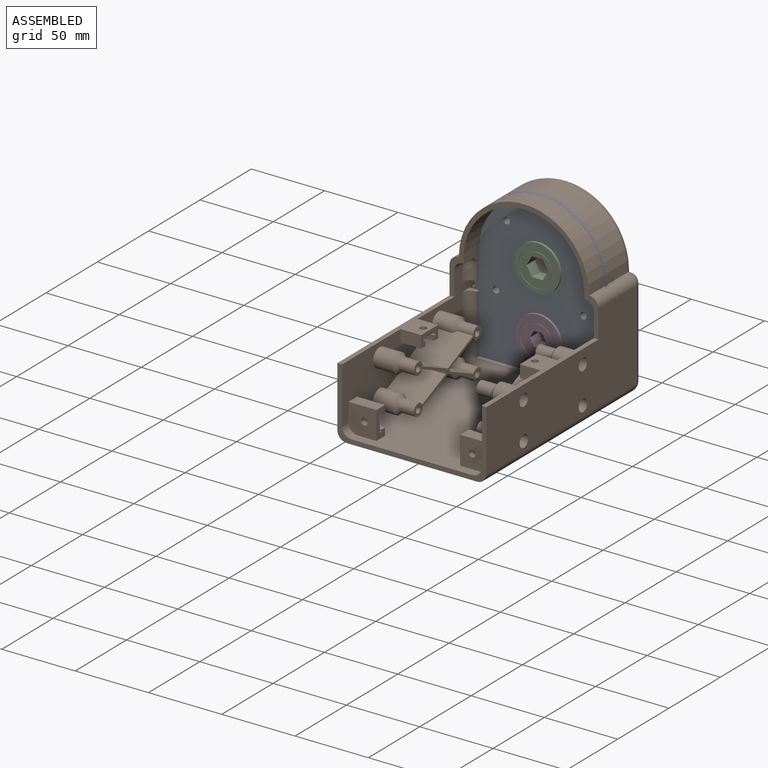
[diagram: assembled view]
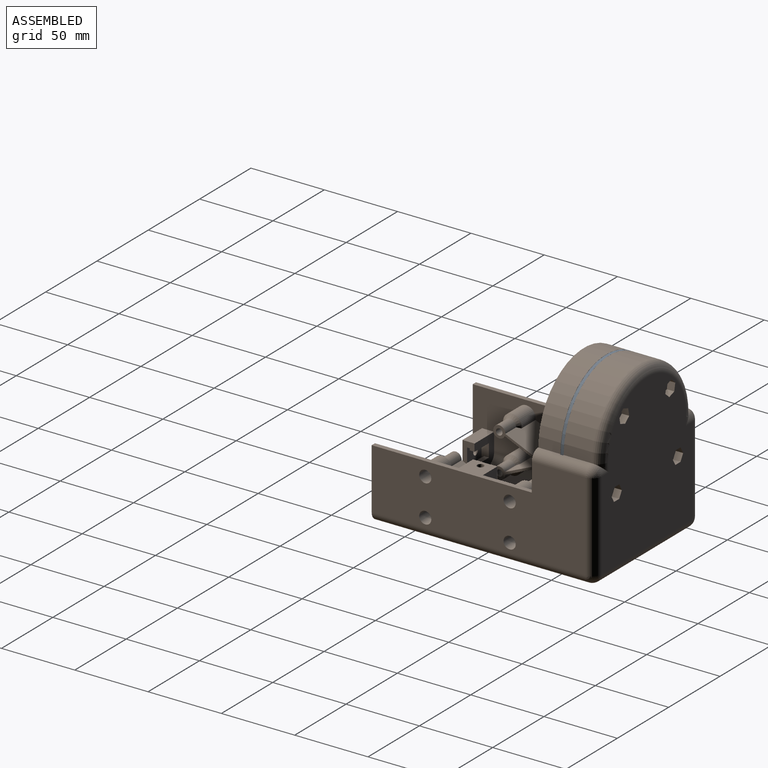
[diagram: assembled view, second angle]
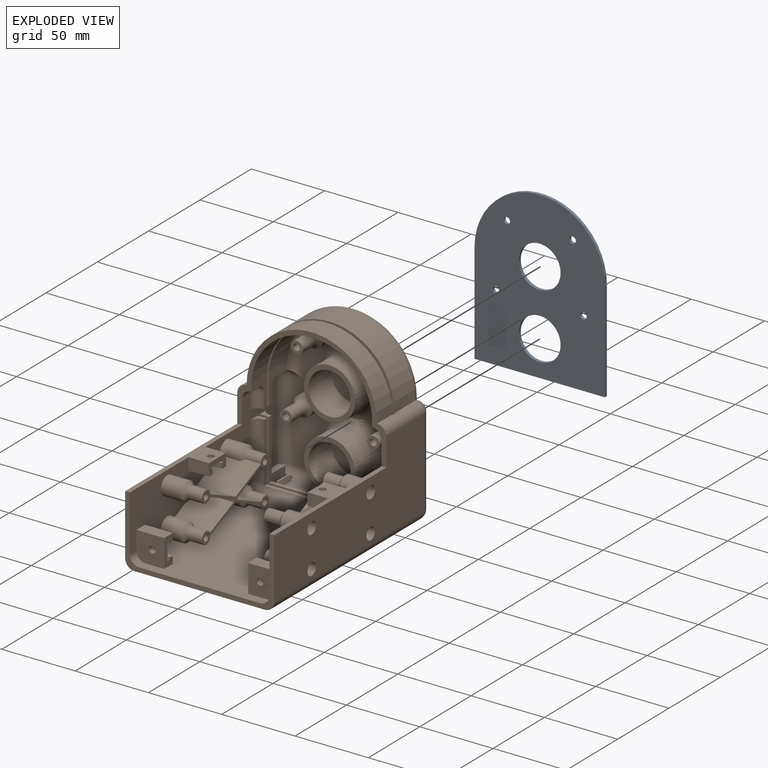
[diagram: exploded view]
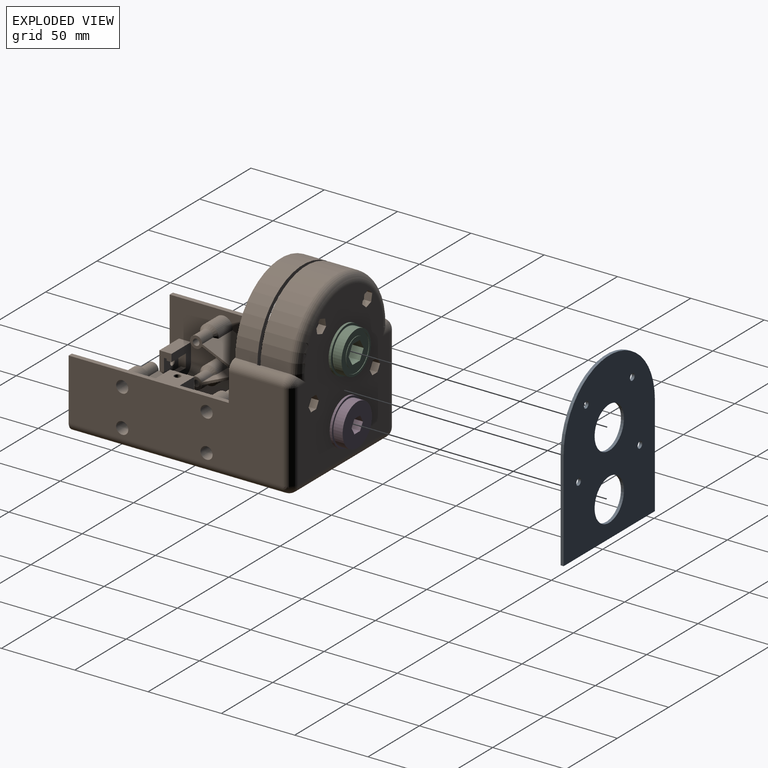
[diagram: exploded view, second angle]
ASSEMBLY  parts=4 mates=3
PART A: 12 faces, bbox 88.9x2x113 mm
  f0: plane 113.03x88.9mm, normal (0,-1,0), area 7855.7mm2, adj f2,f3,f4,f5,f6,f7,f8,f9
  f1: plane 113.03x88.9mm, normal (0,1,0), area 7855.7mm2, adj f2,f3,f4,f5,f6,f7,f8,f9
  f2: plane 68.58x2.03mm, normal (-1,0,0), area 139.4mm2, adj f0,f1,f10,f11
  f3: plane 68.58x2.03mm, normal (1,0,0), area 139.4mm2, adj f0,f1,f10,f11
  f4: cylinder r=14.29mm len=28.58mm, axis (0,1,0), area 182.4mm2, adj f0,f1
  f5: cylinder r=14.29mm len=28.58mm, axis (0,1,0), area 182.4mm2, adj f0,f1
  f6: cylinder r=2.22mm len=4.45mm, axis (0,1,0), area 28.4mm2, adj f0,f1
  f7: cylinder r=2.22mm len=4.45mm, axis (0,1,0), area 28.4mm2, adj f0,f1
  f8: cylinder r=2.22mm len=4.45mm, axis (0,1,0), area 28.4mm2, adj f0,f1
  f9: cylinder r=2.22mm len=4.45mm, axis (0,1,0), area 28.4mm2, adj f0,f1
  f10: cylinder r=44.45mm len=88.9mm, axis (0,1,0), area 283.8mm2, adj f0,f1,f2,f3
  f11: plane 88.9x2.03mm, normal (0,0,-1), area 180.6mm2, adj f0,f1,f2,f3
PART B: 320 faces, bbox 102.6x153.4x122.1 mm
  f0: plane 104.78x88.9mm, normal (0,1,0), area 7850.9mm2, adj f193,f196,f199,f201,f202,f204,f293,f294
  f1: cylinder r=2.22mm len=20.83mm, axis (0,1,0), area 290.9mm2, adj f278,f319
  f2: cylinder r=2.22mm len=20.83mm, axis (0,1,0), area 290.9mm2, adj f280,f312
  f3: cylinder r=2.22mm len=20.83mm, axis (0,1,0), area 290.9mm2, adj f286,f299
  f4: cylinder r=2.22mm len=20.83mm, axis (0,1,0), area 290.9mm2, adj f288,f292
  f5: plane 98.43x82.55mm, normal (0,-1,0), area 3098.8mm2, adj f6,f60,f205,f207,f209,f210,f212,f236
  f6: torus R=34.92mm, axis (0,-1,0), area 1266mm2, adj f5,f40,f207,f209,f276,f284
  f7: cylinder r=5.08mm len=73.05mm, axis (-1,0,0), area 489.1mm2, adj f59,f270,f274,f275
  f8: plane 3.84x1.91mm, normal (0,-1,0), area 4.4mm2, adj f55,f59,f223,f224
  f9: plane 12.57x1.02mm, normal (0,0,1), area 12.8mm2, adj f10,f11,f56,f273
  f10: plane 12.57x3.84mm, normal (-0.99,0,-0.16), area 48.9mm2, adj f9,f56,f58,f273
  f11: plane 12.57x3.84mm, normal (0.97,0,0.23), area 49.5mm2, adj f9,f56,f59,f273
  f12: plane 90.17x2.16mm, normal (0,0,1), area 194.7mm2, adj f28,f34,f246,f249
  f13: plane 44.45x7.62mm, normal (1,0,0), area 103.9mm2, adj f14,f246,f260,f261,f268,f271,f272
  f14: plane 116.87x82.55mm, normal (0,0,1), area 9438.3mm2, adj f13,f36,f54,f63,f143,f144,f146,f147
  f15: plane 40.64x2.54mm, normal (1,0,0), area 103.2mm2, adj f34,f218,f266,f270
  f16: plane 92.71x63.5mm, normal (0,-1,0), area 606.2mm2, adj f19,f24,f29,f38,f39,f40,f41,f62
  f17: plane 10.8x1.27mm, normal (0,1,0), area 13.4mm2, adj f19,f23,f265,f267
  f18: plane 92.71x63.5mm, normal (0,1,0), area 606.2mm2, adj f21,f24,f31,f44,f45,f46,f47,f62
  f19: plane 15.88x7.62mm, normal (1,0,0), area 45.9mm2, adj f16,f17,f39,f265,f267
  f20: plane 10.8x1.27mm, normal (0,-1,0), area 13.4mm2, adj f21,f22,f263,f269
  f21: plane 15.88x7.62mm, normal (1,0,0), area 45.9mm2, adj f18,f20,f45,f263,f269
  f22: cylinder r=5.08mm len=9.53mm, axis (0,0,-1), area 76mm2, adj f20,f62,f263,f269
  f23: cylinder r=5.08mm len=9.53mm, axis (0,0,-1), area 76mm2, adj f17,f62,f265,f267
  f24: cylinder r=6.35mm len=5.08mm, axis (0,-1,0), area 12.7mm2, adj f16,f18,f62,f247
  f25: cylinder r=6.35mm len=5.08mm, axis (0,1,0), area 12.7mm2, adj f34,f62,f246,f249
  f26: cylinder r=6.35mm len=7.49mm, axis (0,-1,0), area 74.7mm2, adj f45,f62,f245,f263
  f27: plane 47.63x6.02mm, normal (0,1,0), area 87.6mm2, adj f33,f57,f59,f70,f250,f258,f270,f274
  f28: plane 44.45x2.16mm, normal (-1,0,0), area 96mm2, adj f12,f34,f246,f258
  f29: plane 15.88x7.62mm, normal (-1,0,0), area 45.9mm2, adj f16,f41,f221,f257,f259
  f30: plane 39.37x1.27mm, normal (0,-1,0), area 49.7mm2, adj f32,f252,f253,f258
  f31: plane 15.88x7.62mm, normal (-1,0,0), area 45.9mm2, adj f18,f47,f251,f255,f259
  f32: cylinder r=5.08mm len=38.1mm, axis (0,0,-1), area 304mm2, adj f30,f68,f253,f258
  f33: cylinder r=5.08mm len=47.63mm, axis (0,0,1), area 314.5mm2, adj f27,f52,f68,f70,f219,f227,f231,f258
  f34: plane 92.71x44.45mm, normal (0,-1,0), area 759mm2, adj f12,f15,f25,f28,f62,f249,f250,f258
  f35: cylinder r=6.35mm len=7.49mm, axis (0,1,0), area 74.7mm2, adj f47,f68,f245,f255
  f36: cylinder r=6.35mm len=102.11mm, axis (0,-1,0), area 967.3mm2, adj f14,f61,f68,f128,f130,f190,f253
  f37: cylinder r=6.35mm len=8.76mm, axis (0,1,0), area 87.4mm2, adj f41,f68,f206,f257
  f38: cylinder r=44.45mm len=88.9mm, axis (0,1,0), area 2731.2mm2, adj f16,f194,f200,f202
  f39: plane 16.38x0.12mm, normal (0,0,-1), area 2mm2, adj f16,f19,f40,f48,f209
  f40: cylinder r=41.27mm len=82.55mm, axis (0,1,0), area 2228.5mm2, adj f6,f16,f39,f41
  f41: plane 16.38x0.12mm, normal (0,0,-1), area 2mm2, adj f16,f29,f37,f40,f207
  f42: plane 146.05x60.33mm, normal (-1,0,0), area 6515.7mm2, adj f71,f109,f111,f113,f115,f143,f195,f200
  f43: plane 146.05x60.33mm, normal (1,0,0), area 6515.7mm2, adj f72,f132,f134,f136,f138,f143,f191,f193
  f44: cylinder r=44.45mm len=88.9mm, axis (0,1,0), area 2110.4mm2, adj f18,f194,f200,f245
  f45: plane 15.11x0.12mm, normal (0,0,-1), area 1.8mm2, adj f18,f21,f26,f46,f245
  f46: cylinder r=41.27mm len=82.55mm, axis (0,1,0), area 2055.8mm2, adj f18,f45,f47,f245
  f47: plane 15.11x0.12mm, normal (0,0,-1), area 1.8mm2, adj f18,f31,f35,f46,f245
  f48: cylinder r=6.35mm len=8.76mm, axis (0,-1,0), area 87.4mm2, adj f39,f62,f211,f265
  f49: cylinder r=17.46mm len=34.93mm, axis (0,1,0), area 1797.5mm2, adj f212,f242
  f50: cylinder r=17.46mm len=34.93mm, axis (0,1,0), area 1813.1mm2, adj f235,f236,f237,f238,f239
  f51: plane 16.14x9.53mm, normal (1,0,0), area 66.9mm2, adj f225,f226,f229,f230,f234,f264
  f52: plane 16.14x9.53mm, normal (-1,0,0), area 66.9mm2, adj f33,f227,f228,f231,f232,f233
  f53: sphere r=6.35mm, area 36.5mm2, adj f60,f205,f219,f220,f228
  f54: cylinder r=6.35mm len=102.11mm, axis (0,1,0), area 967.3mm2, adj f14,f62,f67,f106,f107,f189,f261
  f55: plane 12.57x1.02mm, normal (0,0,1), area 12.8mm2, adj f8,f222,f223,f224
  f56: plane 3.84x1.91mm, normal (0,1,0), area 4.4mm2, adj f9,f10,f11,f60
  f57: plane 17.02x4.03mm, normal (1,0,0), area 54.9mm2, adj f27,f59,f60,f70,f220,f223
  f58: plane 17.02x4.03mm, normal (-1,0,0), area 54.9mm2, adj f10,f59,f60,f70,f217,f218
  f59: plane 76.86x13.84mm, normal (0,0,1), area 672.7mm2, adj f7,f8,f11,f27,f57,f58,f60,f218
  f60: cylinder r=6.35mm len=82.55mm, axis (1,0,0), area 804.5mm2, adj f5,f53,f56,f57,f58,f59,f208,f217
  f61: plane 46.53x14.14mm, normal (-1,0,0), area 413.9mm2, adj f36,f77,f82,f128,f130
  f62: plane 142.88x53.98mm, normal (1,0,0), area 3973.1mm2, adj f16,f18,f22,f23,f24,f25,f26,f34
  f63: plane 19.05x8.26mm, normal (-1,0,0), area 107.6mm2, adj f14,f69,f147,f148,f151,f152,f157,f158
  f64: plane 11.43x5.08mm, normal (-1,0,0), area 49.7mm2, adj f69,f151,f152,f157,f158,f159,f160,f190
  f65: plane 19.05x8.26mm, normal (0,0,1), area 157.3mm2, adj f62,f144,f146,f189
  f66: plane 11.43x5.08mm, normal (1,0,0), area 49.7mm2, adj f145,f149,f150,f153,f154,f155,f156,f189
  f67: plane 46.53x14.14mm, normal (1,0,0), area 413.9mm2, adj f54,f89,f92,f106,f107
  f68: plane 142.88x53.98mm, normal (-1,0,0), area 3870.3mm2, adj f32,f33,f35,f36,f37,f72,f78,f79
  f69: plane 13.97x11.43mm, normal (0,1,0), area 144.2mm2, adj f63,f64,f151,f152,f161
  f70: plane 146.05x88.9mm, normal (0,0,-1), area 12779.4mm2, adj f27,f33,f57,f58,f143,f191,f195,f196
  f71: plane 109.22x17.15mm, normal (0,0,1), area 561.9mm2, adj f42,f62,f143,f163,f164,f166,f187,f245
  f72: plane 109.22x17.15mm, normal (0,0,1), area 561.9mm2, adj f43,f68,f143,f167,f169,f170,f188,f245
  f73: cylinder r=2.22mm len=16.89mm, axis (1,0,0), area 235.9mm2, adj f126,f137
  f74: cylinder r=2.22mm len=16.89mm, axis (1,0,0), area 235.9mm2, adj f126,f135
  f75: cylinder r=2.22mm len=16.99mm, axis (1,0,0), area 237.3mm2, adj f133,f215
  f76: cylinder r=2.22mm len=16.89mm, axis (1,0,0), area 235.9mm2, adj f126,f131
  f77: plane 26.58x24.8mm, normal (0,0.4,-0.91), area 676.9mm2, adj f61,f82,f123,f126,f130,f142
  f78: plane 26.42x23.02mm, normal (0,-0.4,0.91), area 632mm2, adj f68,f123,f124,f126,f130,f142
  f79: plane 26.42x23.02mm, normal (0,-0.4,-0.91), area 632mm2, adj f68,f124,f125,f126,f129,f141
  f80: plane 26.58x24.8mm, normal (0,0.4,0.91), area 676.9mm2, adj f68,f84,f125,f126,f129,f141
  f81: plane 26.42x23.02mm, normal (0,0.4,0.91), area 632mm2, adj f68,f121,f122,f126,f128,f139
  f82: plane 26.58x24.8mm, normal (0,-0.4,-0.91), area 676.9mm2, adj f61,f77,f122,f126,f128,f139
  f83: plane 26.42x23.02mm, normal (0,0.4,-0.91), area 632mm2, adj f68,f120,f121,f126,f127,f140
  f84: plane 26.58x24.8mm, normal (0,-0.4,0.91), area 676.9mm2, adj f68,f80,f120,f126,f127,f140
  f85: cylinder r=2.22mm len=16.89mm, axis (1,0,0), area 235.9mm2, adj f103,f114
  f86: cylinder r=2.22mm len=16.89mm, axis (1,0,0), area 235.9mm2, adj f103,f112
  f87: cylinder r=2.22mm len=16.89mm, axis (1,0,0), area 235.9mm2, adj f103,f110
  f88: cylinder r=2.22mm len=16.89mm, axis (1,0,0), area 235.9mm2, adj f103,f108
  f89: plane 26.58x24.8mm, normal (0,-0.4,-0.91), area 676.9mm2, adj f67,f92,f102,f103,f107,f116
  f90: plane 26.42x23.02mm, normal (0,0.4,0.91), area 632mm2, adj f62,f97,f102,f103,f107,f116
  f91: plane 26.42x23.02mm, normal (0,-0.4,0.91), area 632mm2, adj f62,f100,f101,f103,f106,f117
  f92: plane 26.58x24.8mm, normal (0,0.4,-0.91), area 676.9mm2, adj f67,f89,f101,f103,f106,f117
  f93: plane 26.42x23.02mm, normal (0,0.4,-0.91), area 632mm2, adj f62,f97,f98,f103,f105,f119
  f94: plane 26.58x24.8mm, normal (0,-0.4,0.91), area 676.9mm2, adj f62,f95,f98,f103,f105,f119
  f95: plane 26.58x24.8mm, normal (0,0.4,0.91), area 676.9mm2, adj f62,f94,f99,f103,f104,f118
  f96: plane 26.42x23.02mm, normal (0,-0.4,-0.91), area 632mm2, adj f62,f99,f100,f103,f104,f118
  f97: plane 26.42x1.74mm, normal (0,1,0), area 45.8mm2, adj f62,f90,f93,f103
  f98: cylinder r=4.13mm len=10.54mm, axis (-1,0,0), area 256.2mm2, adj f93,f94,f103,f119
  f99: cylinder r=4.13mm len=10.54mm, axis (-1,0,0), area 256.2mm2, adj f95,f96,f103,f118
  f100: plane 26.42x1.74mm, normal (0,-1,0), area 45.8mm2, adj f62,f91,f96,f103
  f101: cylinder r=4.13mm len=10.54mm, axis (-1,0,0), area 256.2mm2, adj f91,f92,f103,f117
  f102: cylinder r=4.13mm len=10.54mm, axis (-1,0,0), area 256.2mm2, adj f89,f90,f103,f116
  f103: plane 65.79x33.66mm, normal (1,0,0), area 327.3mm2, adj f85,f86,f87,f88,f89,f90,f91,f92
  f104: cylinder r=6.35mm len=13.65mm, axis (-1,0,0), area 522.8mm2, adj f62,f95,f96,f118
  f105: cylinder r=6.35mm len=13.65mm, axis (-1,0,0), area 522.8mm2, adj f62,f93,f94,f119
  f106: cylinder r=6.35mm len=13.65mm, axis (-1,0,0), area 522.8mm2, adj f54,f62,f67,f91,f92,f117
  f107: cylinder r=6.35mm len=13.65mm, axis (-1,0,0), area 522.8mm2, adj f54,f62,f67,f89,f90,f116
  f108: plane 8.26x8.26mm, normal (-1,0,0), area 38mm2, adj f88,f109
  f109: cylinder r=4.13mm len=12.7mm, axis (-1,0,0), area 329.4mm2, adj f42,f108
  f110: plane 8.26x8.26mm, normal (-1,0,0), area 38mm2, adj f87,f111
  f111: cylinder r=4.13mm len=12.7mm, axis (-1,0,0), area 329.4mm2, adj f42,f110
  f112: plane 8.26x8.26mm, normal (-1,0,0), area 38mm2, adj f86,f113
  f113: cylinder r=4.13mm len=12.7mm, axis (-1,0,0), area 329.4mm2, adj f42,f112
  f114: plane 8.26x8.26mm, normal (-1,0,0), area 38mm2, adj f85,f115
  f115: cylinder r=4.13mm len=12.7mm, axis (-1,0,0), area 329.4mm2, adj f42,f114
  f116: cone r=4.13mm half-angle=45deg, axis (-1,0,0), area 98.2mm2, adj f89,f90,f102,f107
  f117: cone r=4.13mm half-angle=45deg, axis (-1,0,0), area 98.2mm2, adj f91,f92,f101,f106
  f118: cone r=4.13mm half-angle=45deg, axis (-1,0,0), area 98.2mm2, adj f95,f96,f99,f104
  f119: cone r=4.13mm half-angle=45deg, axis (-1,0,0), area 98.2mm2, adj f93,f94,f98,f105
  f120: cylinder r=4.13mm len=10.64mm, axis (1,0,0), area 258.8mm2, adj f83,f84,f126,f140,f215
  f121: plane 26.42x1.74mm, normal (0,1,0), area 45.8mm2, adj f68,f81,f83,f126
  f122: cylinder r=4.13mm len=10.54mm, axis (1,0,0), area 256.2mm2, adj f81,f82,f126,f139
  f123: cylinder r=4.13mm len=10.54mm, axis (1,0,0), area 256.2mm2, adj f77,f78,f126,f142
  f124: plane 26.42x1.74mm, normal (0,-1,0), area 45.8mm2, adj f68,f78,f79,f126
  f125: cylinder r=4.13mm len=10.54mm, axis (1,0,0), area 256.2mm2, adj f79,f80,f126,f141
  f126: plane 65.79x33.66mm, normal (-1,0,0), area 289.3mm2, adj f73,f74,f76,f77,f78,f79,f80,f81
  f127: cylinder r=6.35mm len=13.65mm, axis (1,0,0), area 522.8mm2, adj f68,f83,f84,f140
  f128: cylinder r=6.35mm len=13.65mm, axis (1,0,0), area 522.8mm2, adj f36,f61,f68,f81,f82,f139
  f129: cylinder r=6.35mm len=13.65mm, axis (1,0,0), area 522.8mm2, adj f68,f79,f80,f141
  f130: cylinder r=6.35mm len=13.65mm, axis (1,0,0), area 522.8mm2, adj f36,f61,f68,f77,f78,f142
  f131: plane 8.26x8.26mm, normal (1,0,0), area 38mm2, adj f76,f132
  f132: cylinder r=4.13mm len=12.7mm, axis (1,0,0), area 329.4mm2, adj f43,f131
  f133: plane 8.26x8.26mm, normal (1,0,0), area 38mm2, adj f75,f134
  f134: cylinder r=4.13mm len=12.7mm, axis (1,0,0), area 329.4mm2, adj f43,f133
  f135: plane 8.26x8.26mm, normal (1,0,0), area 38mm2, adj f74,f136
  f136: cylinder r=4.13mm len=12.7mm, axis (1,0,0), area 329.4mm2, adj f43,f135
  f137: plane 8.26x8.26mm, normal (1,0,0), area 38mm2, adj f73,f138
  f138: cylinder r=4.13mm len=12.7mm, axis (1,0,0), area 329.4mm2, adj f43,f137
  f139: cone r=4.13mm half-angle=45deg, axis (1,0,0), area 98.2mm2, adj f81,f82,f122,f128
  f140: cone r=4.13mm half-angle=45deg, axis (1,0,0), area 98.2mm2, adj f83,f84,f120,f127
  f141: cone r=4.13mm half-angle=45deg, axis (1,0,0), area 98.2mm2, adj f79,f80,f125,f129
  f142: cone r=4.13mm half-angle=45deg, axis (1,0,0), area 98.2mm2, adj f77,f78,f123,f130
  f143: plane 101.6x47.63mm, normal (0,-1,0), area 604.8mm2, adj f14,f42,f43,f62,f68,f70,f71,f72
  f144: plane 19.05x19.05mm, normal (0,-1,0), area 338.7mm2, adj f14,f62,f65,f146,f162,f213
  f145: plane 13.97x11.43mm, normal (0,1,0), area 144.2mm2, adj f66,f146,f149,f150,f162
  f146: plane 19.05x8.26mm, normal (1,0,0), area 107.6mm2, adj f14,f65,f144,f145,f149,f150,f153,f154
  f147: plane 19.05x19.05mm, normal (0,-1,0), area 338.7mm2, adj f14,f63,f68,f148,f161,f214
  f148: plane 19.05x8.26mm, normal (0,0,1), area 157.3mm2, adj f63,f68,f147,f190
  f149: plane 13.97x1.78mm, normal (0,0,-1), area 24.8mm2, adj f66,f145,f146,f153
  f150: plane 13.97x1.78mm, normal (0,0,1), area 24.8mm2, adj f66,f145,f146,f156
  f151: plane 13.97x1.78mm, normal (0,0,-1), area 24.8mm2, adj f63,f64,f69,f160
  f152: plane 13.97x1.78mm, normal (0,0,1), area 24.8mm2, adj f63,f64,f69,f157
  f153: plane 13.97x1.27mm, normal (0,-1,0), area 17.7mm2, adj f66,f146,f149,f154
  f154: plane 13.97x3.3mm, normal (0,0,-1), area 46.1mm2, adj f66,f146,f153,f189
  f155: plane 13.97x3.3mm, normal (0,0,1), area 46.1mm2, adj f66,f146,f156,f189
  f156: plane 13.97x1.27mm, normal (0,-1,0), area 17.7mm2, adj f66,f146,f150,f155
  f157: plane 13.97x1.27mm, normal (0,-1,0), area 17.7mm2, adj f63,f64,f152,f159
  f158: plane 13.97x3.3mm, normal (0,0,-1), area 46.1mm2, adj f63,f64,f160,f190
  f159: plane 13.97x3.3mm, normal (0,0,1), area 46.1mm2, adj f63,f64,f157,f190
  f160: plane 13.97x1.27mm, normal (0,-1,0), area 17.7mm2, adj f63,f64,f151,f158
  f161: cylinder r=2.22mm len=4.45mm, axis (0,-1,0), area 44.3mm2, adj f69,f147
  f162: cylinder r=2.22mm len=4.45mm, axis (0,-1,0), area 44.3mm2, adj f144,f145
  f163: plane 13.97x8.26mm, normal (0,1,0), area 115.3mm2, adj f62,f71,f166,f178
  f164: plane 13.97x8.26mm, normal (0,-1,0), area 115.3mm2, adj f62,f71,f166,f178
  f165: plane 11.43x8.89mm, normal (0,0,-1), area 86.1mm2, adj f166,f171,f172,f173,f187
  f166: plane 16.51x8.26mm, normal (1,0,0), area 86.6mm2, adj f71,f163,f164,f165,f171,f173,f174,f175
  f167: plane 13.97x8.26mm, normal (0,1,0), area 115.3mm2, adj f68,f72,f170,f185
  f168: plane 11.43x11.43mm, normal (0,0,-1), area 115.1mm2, adj f170,f179,f180,f181,f188
  f169: plane 13.97x8.26mm, normal (0,-1,0), area 115.3mm2, adj f68,f72,f170,f185
  f170: plane 16.51x8.26mm, normal (-1,0,0), area 86.6mm2, adj f72,f167,f168,f169,f179,f181,f182,f183
  f171: plane 8.89x1.78mm, normal (0,-1,0), area 15.8mm2, adj f165,f166,f172,f175
  f172: plane 11.43x5.08mm, normal (1,0,0), area 49.7mm2, adj f165,f171,f173,f174,f175,f176,f177,f178
  f173: plane 8.89x1.78mm, normal (0,1,0), area 15.8mm2, adj f165,f166,f172,f174
  f174: plane 8.89x1.27mm, normal (0,0,1), area 11.3mm2, adj f166,f172,f173,f177
  f175: plane 8.89x1.27mm, normal (0,0,1), area 11.3mm2, adj f166,f171,f172,f176
  f176: plane 8.89x3.3mm, normal (0,-1,0), area 29.4mm2, adj f166,f172,f175,f178
  f177: plane 8.89x3.3mm, normal (0,1,0), area 29.4mm2, adj f166,f172,f174,f178
  f178: plane 16.51x13.97mm, normal (0,0,-1), area 151.6mm2, adj f62,f163,f164,f166,f172,f176,f177
  f179: plane 11.43x1.78mm, normal (0,1,0), area 20.3mm2, adj f168,f170,f180,f182
  f180: plane 11.43x5.08mm, normal (-1,0,0), area 49.7mm2, adj f168,f179,f181,f182,f183,f184,f185,f186
  f181: plane 11.43x1.78mm, normal (0,-1,0), area 20.3mm2, adj f168,f170,f180,f186
  f182: plane 11.43x1.27mm, normal (0,0,1), area 14.5mm2, adj f170,f179,f180,f184
  f183: plane 11.43x3.3mm, normal (0,-1,0), area 37.7mm2, adj f170,f180,f185,f186
  f184: plane 11.43x3.3mm, normal (0,1,0), area 37.7mm2, adj f170,f180,f182,f185
  f185: plane 16.51x13.97mm, normal (0,0,-1), area 129mm2, adj f68,f167,f169,f170,f180,f183,f184
  f186: plane 11.43x1.27mm, normal (0,0,1), area 14.5mm2, adj f170,f180,f181,f183
  f187: cylinder r=2.22mm len=4.45mm, axis (0,0,1), area 44.3mm2, adj f71,f165
  f188: cylinder r=2.22mm len=4.45mm, axis (0,0,1), area 44.3mm2, adj f72,f168
  f189: plane 19.05x19.05mm, normal (0,1,0), area 230.1mm2, adj f14,f54,f62,f65,f66,f146,f154,f155
  f190: plane 19.05x19.05mm, normal (0,1,0), area 230.1mm2, adj f14,f36,f63,f64,f68,f148,f158,f159
  f191: cylinder r=6.35mm len=146.05mm, axis (0,1,0), area 1456.8mm2, adj f43,f70,f143,f192,f219
  f192: sphere r=6.35mm, area 63.3mm2, adj f191,f193,f196
  f193: cylinder r=6.35mm len=60.33mm, axis (0,0,-1), area 601.7mm2, adj f0,f43,f192,f197
  f194: cylinder r=6.35mm len=36.83mm, axis (0,1,0), area 366mm2, adj f16,f18,f38,f43,f44,f197,f245,f248
  f195: cylinder r=6.35mm len=146.05mm, axis (0,-1,0), area 1456.8mm2, adj f42,f70,f143,f198,f216
  f196: cylinder r=6.35mm len=88.9mm, axis (-1,0,0), area 886.7mm2, adj f0,f70,f192,f198,f217,f220
  f197: sphere r=6.35mm, area 63.3mm2, adj f193,f194,f199
  f198: sphere r=6.35mm, area 63.3mm2, adj f195,f196,f201
  f199: cylinder r=6.35mm len=6.88mm, axis (-1,0,0), area 34.3mm2, adj f0,f197,f202
  f200: cylinder r=6.35mm len=36.83mm, axis (0,-1,0), area 366mm2, adj f16,f18,f38,f42,f44,f203,f245,f247
  f201: cylinder r=6.35mm len=60.33mm, axis (0,0,1), area 601.7mm2, adj f0,f42,f198,f203
  f202: torus R=38.1mm, axis (0,1,0), area 1389.1mm2, adj f0,f38,f199,f204
  f203: sphere r=6.35mm, area 63.3mm2, adj f200,f201,f204
  f204: cylinder r=6.35mm len=6.88mm, axis (-1,0,0), area 34.3mm2, adj f0,f202,f203
  f205: cylinder r=6.35mm len=53.98mm, axis (0,0,1), area 536.8mm2, adj f5,f53,f68,f206,f227,f228
  f206: sphere r=6.35mm, area 63.3mm2, adj f37,f205,f207
  f207: cylinder r=6.35mm len=7.67mm, axis (1,0,0), area 27.6mm2, adj f5,f6,f41,f206
  f208: sphere r=6.35mm, area 34mm2, adj f60,f210,f216,f217,f226
  f209: cylinder r=6.35mm len=7.67mm, axis (1,0,0), area 27.6mm2, adj f5,f6,f39,f211
  f210: cylinder r=6.35mm len=53.98mm, axis (0,0,-1), area 536.8mm2, adj f5,f62,f208,f211,f225,f226
  f211: sphere r=6.35mm, area 63.3mm2, adj f48,f209,f210
  f212: torus R=23.81mm, axis (0,-1,0), area 1239mm2, adj f5,f49,f235
  f213: cylinder r=6.35mm len=6.35mm, axis (0,1,0), area 63.3mm2, adj f14,f62,f143,f144
  f214: cylinder r=6.35mm len=6.35mm, axis (0,-1,0), area 63.3mm2, adj f14,f68,f143,f147
  f215: plane 8.26x8.26mm, normal (-1,0,0), area 38mm2, adj f75,f120
  f216: plane 16.71x7.08mm, normal (1,0,0), area 99.2mm2, adj f195,f208,f217,f226,f229,f230,f234,f264
  f217: plane 6.99x6mm, normal (0,-1,0), area 25.3mm2, adj f58,f60,f196,f208,f216
  f218: plane 47.63x6.02mm, normal (0,1,0), area 87.6mm2, adj f15,f58,f59,f70,f264,f266,f270,f275
  f219: plane 16.65x7.01mm, normal (-1,0,0), area 99.2mm2, adj f33,f53,f191,f220,f228,f231,f232,f233
  f220: plane 6.33x5.34mm, normal (0,-1,0), area 25.3mm2, adj f53,f57,f60,f196,f219
  f221: plane 10.8x1.27mm, normal (0,1,0), area 13.4mm2, adj f29,f256,f257,f259
  f222: plane 3.84x1.91mm, normal (0,1,0), area 4.4mm2, adj f55,f60,f223,f224
  f223: plane 12.57x3.84mm, normal (0.99,0,-0.16), area 48.9mm2, adj f8,f55,f57,f222
  f224: plane 12.57x3.84mm, normal (-0.97,0,0.23), area 49.5mm2, adj f8,f55,f59,f222
  f225: plane 16.14x4.45mm, normal (0,0,1), area 66mm2, adj f51,f62,f210,f226,f264
  f226: plane 10.47x4.95mm, normal (0,1,0), area 23.5mm2, adj f51,f208,f210,f216,f225,f230
  f227: plane 16.14x4.45mm, normal (0,0,1), area 66mm2, adj f33,f52,f68,f205,f228
  f228: plane 9.53x4mm, normal (0,1,0), area 23.5mm2, adj f52,f53,f205,f219,f227,f232
  f229: plane 13.68x1.27mm, normal (0,0,-1), area 17.2mm2, adj f51,f216,f234,f264
  f230: plane 2.46x1.27mm, normal (0,0,-1), area 3.1mm2, adj f51,f216,f226,f234
  f231: plane 13.68x1.27mm, normal (0,0,-1), area 17.2mm2, adj f33,f52,f219,f233
  f232: plane 2.46x1.27mm, normal (0,0,-1), area 3.1mm2, adj f52,f219,f228,f233
  f233: plane 6.35x1.27mm, normal (0,-1,0), area 8.1mm2, adj f52,f219,f231,f232
  f234: plane 6.35x1.27mm, normal (0,-1,0), area 8.1mm2, adj f51,f216,f229,f230
  f235: bspline ~19.17x7.37mm, area 108mm2, adj f50,f212,f236,f237
  f236: torus R=23.81mm, axis (0,-1,0), area 420.2mm2, adj f5,f50,f235,f238
  f237: torus R=23.81mm, axis (0,-1,0), area 420.2mm2, adj f5,f50,f235,f238
  f238: bspline ~29.93x6.88mm, area 155.9mm2, adj f50,f60,f236,f237
  f239: plane 34.93x34.93mm, normal (0,-1,0), area 316.7mm2, adj f50,f241
  f240: plane 28.58x28.58mm, normal (0,-1,0), area 641.3mm2, adj f241
  f241: cylinder r=14.29mm len=28.58mm, axis (0,1,0), area 2040.8mm2, adj f239,f240
  f242: plane 34.93x34.93mm, normal (0,-1,0), area 316.7mm2, adj f49,f244
  f243: plane 28.58x28.58mm, normal (0,-1,0), area 641.3mm2, adj f244
  f244: cylinder r=14.29mm len=28.58mm, axis (0,1,0), area 2040.8mm2, adj f242,f243
  f245: plane 101.6x69.85mm, normal (0,-1,0), area 629.4mm2, adj f26,f35,f42,f43,f44,f45,f46,f47
  f246: plane 92.71x44.45mm, normal (0,1,0), area 759mm2, adj f12,f13,f25,f28,f62,f249,f252,f258
  f247: plane 4.41x2.16mm, normal (1,0,0), area 9.5mm2, adj f16,f18,f24,f200
  f248: plane 19.02x2.16mm, normal (-1,0,0), area 41.1mm2, adj f16,f18,f194,f259
  f249: plane 2.16x1.27mm, normal (1,0,0), area 2.7mm2, adj f12,f25,f34,f246
  f250: plane 40.64x2.54mm, normal (-1,0,0), area 103.2mm2, adj f27,f34,f258,f270
  f251: plane 10.8x1.27mm, normal (0,-1,0), area 13.4mm2, adj f31,f254,f255,f259
  f252: plane 44.45x7.62mm, normal (-1,0,0), area 103.9mm2, adj f14,f30,f246,f253,f258,f271,f272
  f253: torus R=1.27mm, axis (0,1,0), area 56.5mm2, adj f30,f32,f36,f252
  f254: cylinder r=5.08mm len=9.53mm, axis (0,0,-1), area 76mm2, adj f68,f251,f255,f259
  f255: torus R=1.27mm, axis (0,1,0), area 56.5mm2, adj f31,f35,f251,f254
  f256: cylinder r=5.08mm len=9.53mm, axis (0,0,1), area 76mm2, adj f68,f221,f257,f259
  f257: torus R=1.27mm, axis (0,1,0), area 56.5mm2, adj f29,f37,f221,f256
  f258: plane 17.4x6.35mm, normal (0,0,1), area 48.8mm2, adj f27,f28,f30,f32,f33,f34,f68,f246
  f259: plane 17.4x6.35mm, normal (0,0,-1), area 48.8mm2, adj f16,f18,f29,f31,f68,f221,f248,f251
  f260: plane 39.37x1.27mm, normal (0,-1,0), area 49.7mm2, adj f13,f261,f262,f268
  f261: torus R=1.27mm, axis (0,-1,0), area 56.5mm2, adj f13,f54,f260,f262
  f262: cylinder r=5.08mm len=38.1mm, axis (0,0,-1), area 304mm2, adj f62,f260,f261,f268
  f263: torus R=1.27mm, axis (0,-1,0), area 56.5mm2, adj f20,f21,f22,f26
  f264: cylinder r=5.08mm len=47.63mm, axis (0,0,-1), area 314.5mm2, adj f51,f62,f70,f216,f218,f225,f229,f266
  f265: torus R=1.27mm, axis (0,1,0), area 56.5mm2, adj f17,f19,f23,f48
  f266: plane 7.62x6.35mm, normal (0,0,1), area 21.7mm2, adj f15,f34,f62,f218,f264
  f267: plane 7.62x6.35mm, normal (0,0,-1), area 21.7mm2, adj f16,f17,f19,f23,f62
  f268: plane 7.62x6.35mm, normal (0,0,1), area 21.7mm2, adj f13,f62,f246,f260,f262
  f269: plane 7.62x6.35mm, normal (0,0,-1), area 21.7mm2, adj f18,f20,f21,f22,f62
  f270: plane 82.55x2.54mm, normal (0,0,1), area 209.7mm2, adj f7,f15,f27,f34,f218,f250
  f271: plane 82.55x2.54mm, normal (0,0,1), area 209.7mm2, adj f13,f246,f252,f272
  f272: cylinder r=5.08mm len=82.55mm, axis (1,0,0), area 552.8mm2, adj f13,f14,f252,f271
  f273: plane 3.84x1.91mm, normal (0,-1,0), area 4.4mm2, adj f9,f10,f11,f59
  f274: plane 4.92x3.81mm, normal (1,0,0), area 4.9mm2, adj f7,f27,f59
  f275: plane 4.92x3.81mm, normal (-1,0,0), area 4.9mm2, adj f7,f59,f218
  f276: cylinder r=6.67mm len=13.34mm, axis (0,1,0), area 266mm2, adj f5,f6,f282
  f277: cylinder r=4.13mm len=11.98mm, axis (0,1,0), area 310.8mm2, adj f278,f282
  f278: plane 8.26x8.26mm, normal (0,-1,0), area 38mm2, adj f1,f277
  f279: cylinder r=6.67mm len=13.34mm, axis (0,1,0), area 266mm2, adj f5,f283
  f280: plane 8.26x8.26mm, normal (0,-1,0), area 38mm2, adj f2,f281
  f281: cylinder r=4.13mm len=11.98mm, axis (0,1,0), area 310.8mm2, adj f280,f283
  f282: torus R=9.21mm, axis (0,1,0), area 167.3mm2, adj f276,f277
  f283: torus R=9.21mm, axis (0,1,0), area 167.3mm2, adj f279,f281
  f284: cylinder r=6.67mm len=13.34mm, axis (0,1,0), area 266mm2, adj f5,f6,f291
  f285: cylinder r=4.13mm len=11.98mm, axis (0,1,0), area 310.8mm2, adj f286,f291
  f286: plane 8.26x8.26mm, normal (0,-1,0), area 38mm2, adj f3,f285
  f287: cylinder r=6.67mm len=13.34mm, axis (0,1,0), area 266mm2, adj f5,f290
  f288: plane 8.26x8.26mm, normal (0,-1,0), area 38mm2, adj f4,f289
  f289: cylinder r=4.13mm len=11.98mm, axis (0,1,0), area 310.8mm2, adj f288,f290
  f290: torus R=9.21mm, axis (0,1,0), area 167.3mm2, adj f287,f289
  f291: torus R=9.21mm, axis (0,1,0), area 167.3mm2, adj f284,f285
  f292: plane 10.27x8.89mm, normal (0,1,0), area 52.9mm2, adj f4,f293,f294,f295,f296,f297,f298
  f293: plane 5.08x4.45mm, normal (0.87,0,-0.5), area 26.1mm2, adj f0,f292,f294,f298
  f294: plane 5.13x5.08mm, normal (0,0,-1), area 26.1mm2, adj f0,f292,f293,f295
  f295: plane 5.08x4.45mm, normal (-0.87,0,-0.5), area 26.1mm2, adj f0,f292,f294,f296
  f296: plane 5.08x4.45mm, normal (-0.87,0,0.5), area 26.1mm2, adj f0,f292,f295,f297
  f297: plane 5.13x5.08mm, normal (0,0,1), area 26.1mm2, adj f0,f292,f296,f298
  f298: plane 5.08x4.45mm, normal (0.87,0,0.5), area 26.1mm2, adj f0,f292,f293,f297
  f299: plane 10.07x9.72mm, normal (0,1,0), area 52.9mm2, adj f3,f300,f301,f302,f303,f304,f305
  f300: plane 5.08x4.86mm, normal (0.32,0,0.95), area 26.1mm2, adj f0,f299,f301,f305
  f301: plane 5.08x5.04mm, normal (0.98,0,0.19), area 26.1mm2, adj f0,f299,f300,f302
  f302: plane 5.08x3.86mm, normal (0.66,0,-0.75), area 26.1mm2, adj f0,f299,f301,f303
  f303: plane 5.08x4.86mm, normal (-0.32,0,-0.95), area 26.1mm2, adj f0,f299,f302,f304
  f304: plane 5.08x5.04mm, normal (-0.98,0,-0.19), area 26.1mm2, adj f0,f299,f303,f305
  f305: plane 5.08x3.86mm, normal (-0.66,0,0.75), area 26.1mm2, adj f0,f299,f300,f304
  f306: plane 5.13x5.08mm, normal (0,0,-1), area 26.1mm2, adj f0,f307,f311,f312
  f307: plane 5.08x4.45mm, normal (-0.87,0,-0.5), area 26.1mm2, adj f0,f306,f308,f312
  f308: plane 5.08x4.45mm, normal (-0.87,0,0.5), area 26.1mm2, adj f0,f307,f309,f312
  f309: plane 5.13x5.08mm, normal (0,0,1), area 26.1mm2, adj f0,f308,f310,f312
  f310: plane 5.08x4.45mm, normal (0.87,0,0.5), area 26.1mm2, adj f0,f309,f311,f312
  f311: plane 5.08x4.45mm, normal (0.87,0,-0.5), area 26.1mm2, adj f0,f306,f310,f312
  f312: plane 10.27x8.89mm, normal (0,1,0), area 52.9mm2, adj f2,f306,f307,f308,f309,f310,f311
  f313: plane 5.08x3.86mm, normal (0.66,0,0.75), area 26.1mm2, adj f0,f314,f318,f319
  f314: plane 5.08x5.04mm, normal (0.98,0,-0.19), area 26.1mm2, adj f0,f313,f315,f319
  f315: plane 5.08x4.86mm, normal (0.32,0,-0.95), area 26.1mm2, adj f0,f314,f316,f319
  f316: plane 5.08x3.86mm, normal (-0.66,0,-0.75), area 26.1mm2, adj f0,f315,f317,f319
  f317: plane 5.08x5.04mm, normal (-0.98,0,0.19), area 26.1mm2, adj f0,f316,f318,f319
  f318: plane 5.08x4.86mm, normal (-0.32,0,0.95), area 26.1mm2, adj f0,f313,f317,f319
  f319: plane 10.07x9.72mm, normal (0,1,0), area 52.9mm2, adj f1,f313,f314,f315,f316,f317,f318
PART C: 21 faces, bbox 31.1x31.1x7.9 mm
  f0: torus R=14.27mm, axis (0,0,1), area 46.4mm2, adj f4,f10
  f1: cylinder r=9.65mm len=19.3mm, axis (0,0,1), area 23.1mm2, adj f12,f13
  f2: cylinder r=12.7mm len=25.4mm, axis (0,0,1), area 30.4mm2, adj f11,f12
  f3: cylinder r=14.27mm len=28.55mm, axis (0,0,1), area 502.3mm2, adj f4,f11
  f4: cone r=14.06mm half-angle=30deg, axis (0,0,-1), area 38.5mm2, adj f0,f3
  f5: cylinder r=15.56mm len=31.12mm, axis (0,0,1), area 155.2mm2, adj f9,f10
  f6: cylinder r=12.7mm len=25.4mm, axis (0,0,1), area 30.4mm2, adj f8,f9
  f7: cylinder r=9.65mm len=19.3mm, axis (0,0,1), area 23.1mm2, adj f8,f14
  f8: plane 25.4x25.4mm, normal (0,0,1), area 214mm2, adj f6,f7
  f9: plane 31.12x31.12mm, normal (0,0,1), area 253.7mm2, adj f5,f6
  f10: plane 31.12x31.12mm, normal (0,0,-1), area 120.2mm2, adj f0,f5
  f11: plane 28.55x28.55mm, normal (0,0,-1), area 133.5mm2, adj f2,f3
  f12: plane 25.4x25.4mm, normal (0,0,-1), area 214mm2, adj f1,f2
  f13: plane 19.3x19.3mm, normal (0,0,-1), area 152.6mm2, adj f1,f15,f16,f17,f18,f19,f20
  f14: plane 19.3x19.3mm, normal (0,0,1), area 152.6mm2, adj f7,f15,f16,f17,f18,f19,f20
  f15: plane 7.94x6.36mm, normal (-0.87,-0.5,0), area 58.3mm2, adj f13,f14,f16,f20
  f16: plane 7.94x6.36mm, normal (-0.87,0.5,0), area 58.3mm2, adj f13,f14,f15,f17
  f17: plane 7.94x7.34mm, normal (0,1,0), area 58.3mm2, adj f13,f14,f16,f18
  f18: plane 7.94x6.36mm, normal (0.87,0.5,0), area 58.3mm2, adj f13,f14,f17,f19
  f19: plane 7.94x6.36mm, normal (0.87,-0.5,0), area 58.3mm2, adj f13,f14,f18,f20
  f20: plane 7.94x7.34mm, normal (0,-1,0), area 58.3mm2, adj f13,f14,f15,f19
PART D: 15 faces, bbox 31.1x31.1x7.9 mm
  f0: cylinder r=12.7mm len=25.4mm, axis (0,0,1), area 30.4mm2, adj f7,f8
  f1: cylinder r=15.56mm len=31.12mm, axis (0,0,1), area 155.2mm2, adj f6,f7
  f2: cylinder r=14.27mm len=28.55mm, axis (0,0,1), area 569.5mm2, adj f5,f6
  f3: cylinder r=9.53mm len=19.05mm, axis (0,0,1), area 22.8mm2, adj f4,f8
  f4: plane 19.05x19.05mm, normal (0,0,1), area 206.2mm2, adj f3,f9,f10,f11,f12,f13,f14
  f5: plane 28.55x28.55mm, normal (0,0,-1), area 561.3mm2, adj f2,f9,f10,f11,f12,f13,f14
  f6: plane 31.12x31.12mm, normal (0,0,-1), area 120.2mm2, adj f1,f2
  f7: plane 31.12x31.12mm, normal (0,0,1), area 253.7mm2, adj f0,f1
  f8: plane 25.4x25.4mm, normal (0,0,1), area 221.7mm2, adj f0,f3
  f9: plane 7.94x4.77mm, normal (-0.87,0.5,0), area 43.7mm2, adj f4,f5,f10,f14
  f10: plane 7.94x4.77mm, normal (-0.87,-0.5,0), area 43.7mm2, adj f4,f5,f9,f11
  f11: plane 7.94x5.51mm, normal (0,-1,0), area 43.7mm2, adj f4,f5,f10,f12
  f12: plane 7.94x4.77mm, normal (0.87,-0.5,0), area 43.7mm2, adj f4,f5,f11,f13
  f13: plane 7.94x4.77mm, normal (0.87,0.5,0), area 43.7mm2, adj f4,f5,f12,f14
  f14: plane 7.94x5.51mm, normal (0,1,0), area 43.7mm2, adj f4,f5,f9,f13
PLACE A t=(0,53.48,3.17)mm
PLACE B t=(0,-12.56,0)mm fixed
PLACE C rot(axis=(1,0,0),90deg) t=(0,58.07,73.02)mm
PLACE D rot(axis=(1,0,0),90deg) t=(0,58.82,28.58)mm
MATE fastened A.f5 <-> B.f50  axis (0,1,0) through (0,54.5,28.58)mm
MATE fastened D.f0 <-> A.f5  axis (0,1,0) through (0,52.47,28.58)mm
MATE fastened C.f0 <-> A.f4  axis (0,-1,0) through (0,52.47,73.02)mm
